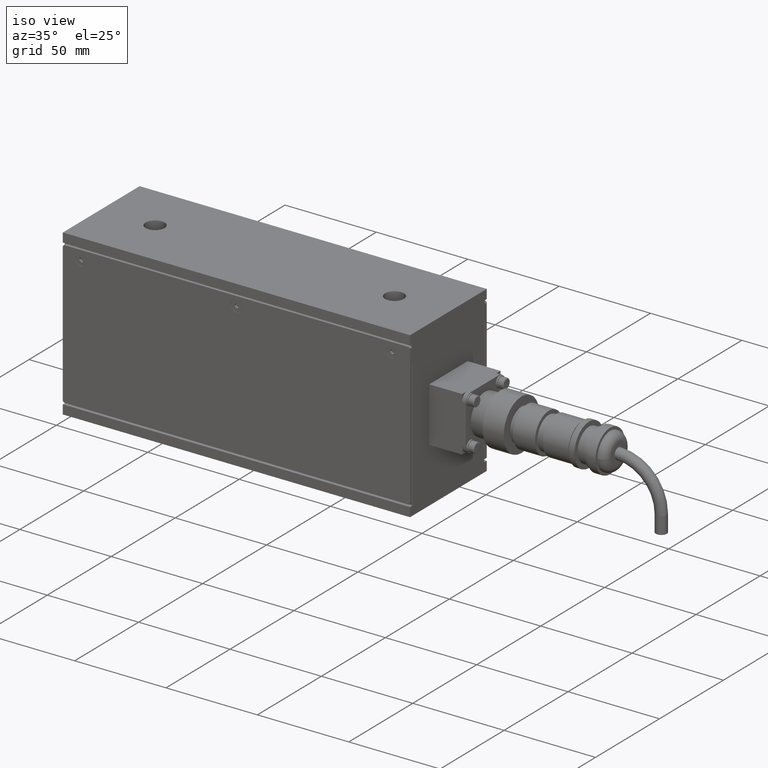
[diagram: clean part render]
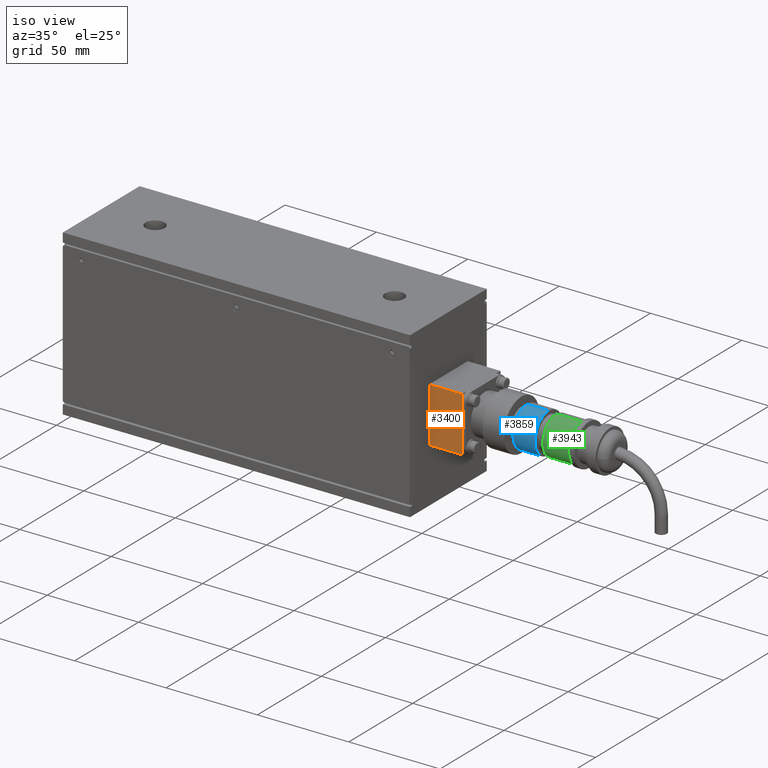
[diagram: same view with three faces highlighted in distinct colors, each labeled with its STEP entity id]
A machine part, iso view with three faces highlighted in distinct colors.
Their STEP definitions:

[orange] entity #3400 — the highlighted planar face has unit normal (0, -1, 0).
#3337=CARTESIAN_POINT('',(-15.0,-14.999999999999972,9.0));
#3338=VERTEX_POINT('',#3337);
#3345=CARTESIAN_POINT('',(-15.0,-14.999999999999972,-9.0));
#3346=VERTEX_POINT('',#3345);
#3347=CARTESIAN_POINT('',(-15.0,-14.999999999999972,-9.0));
#3348=DIRECTION('',(0.0,0.0,1.0));
#3349=VECTOR('',#3348,18.0);
#3350=LINE('',#3347,#3349);
#3351=EDGE_CURVE('',#3346,#3338,#3350,.T.);
#3370=CARTESIAN_POINT('',(-15.0,-14.999999999999972,-9.0));
#3371=DIRECTION('',(-1.0,0.0,0.0));
#3372=DIRECTION('',(0.0,0.0,1.0));
#3373=AXIS2_PLACEMENT_3D('',#3370,#3371,#3372);
#3374=PLANE('',#3373);
#3375=CARTESIAN_POINT('',(-15.0,15.0,9.0));
#3376=VERTEX_POINT('',#3375);
#3377=CARTESIAN_POINT('',(-15.0,-14.999999999999972,9.0));
#3378=DIRECTION('',(0.0,1.0,0.0));
#3379=VECTOR('',#3378,29.999999999999972);
#3380=LINE('',#3377,#3379);
#3381=EDGE_CURVE('',#3338,#3376,#3380,.T.);
#3382=ORIENTED_EDGE('',*,*,#3381,.T.);
#3383=CARTESIAN_POINT('',(-15.0,15.0,-9.0));
#3384=VERTEX_POINT('',#3383);
#3385=CARTESIAN_POINT('',(-15.0,15.0,-9.0));
#3386=DIRECTION('',(0.0,0.0,1.0));
#3387=VECTOR('',#3386,18.0);
#3388=LINE('',#3385,#3387);
#3389=EDGE_CURVE('',#3384,#3376,#3388,.T.);
#3390=ORIENTED_EDGE('',*,*,#3389,.F.);
#3391=CARTESIAN_POINT('',(-15.0,-14.999999999999972,-9.0));
#3392=DIRECTION('',(0.0,1.0,0.0));
#3393=VECTOR('',#3392,29.999999999999972);
#3394=LINE('',#3391,#3393);
#3395=EDGE_CURVE('',#3346,#3384,#3394,.T.);
#3396=ORIENTED_EDGE('',*,*,#3395,.F.);
#3397=ORIENTED_EDGE('',*,*,#3351,.T.);
#3398=EDGE_LOOP('',(#3382,#3390,#3396,#3397));
#3399=FACE_OUTER_BOUND('',#3398,.T.);
#3400=ADVANCED_FACE('',(#3399),#3374,.T.);

[blue] entity #3859 — the highlighted cylindrical surface (edge-blend (fillet) strip) has radius 11 mm, axis along (1, 0, 0).
#3818=CARTESIAN_POINT('',(-2.063341E-015,39.250000000000369,0.0));
#3819=DIRECTION('',(0.0,1.0,0.0));
#3820=DIRECTION('',(-1.0,0.0,0.0));
#3821=AXIS2_PLACEMENT_3D('',#3818,#3819,#3820);
#3822=CYLINDRICAL_SURFACE('',#3821,11.000000000000004);
#3823=CARTESIAN_POINT('',(-11.000000000000007,45.250000000000256,0.0));
#3824=VERTEX_POINT('',#3823);
#3825=CARTESIAN_POINT('',(-11.000000000000004,33.250000000000483,0.0));
#3826=VERTEX_POINT('',#3825);
#3827=CARTESIAN_POINT('',(-11.000000000000007,45.250000000000256,0.0));
#3828=DIRECTION('',(0.0,-1.0,0.0));
#3829=VECTOR('',#3828,11.999999999999773);
#3830=LINE('',#3827,#3829);
#3831=EDGE_CURVE('',#3824,#3826,#3830,.T.);
#3832=ORIENTED_EDGE('',*,*,#3831,.F.);
#3833=CARTESIAN_POINT('',(11.000000000000002,45.250000000000256,-1.347067E-015));
#3834=VERTEX_POINT('',#3833);
#3835=CARTESIAN_POINT('',(-2.063341E-015,45.250000000000256,0.0));
#3836=DIRECTION('',(0.0,1.0,0.0));
#3837=DIRECTION('',(-1.0,0.0,0.0));
#3838=AXIS2_PLACEMENT_3D('',#3835,#3836,#3837);
#3839=CIRCLE('',#3838,11.000000000000005);
#3840=EDGE_CURVE('',#3834,#3824,#3839,.T.);
#3841=ORIENTED_EDGE('',*,*,#3840,.F.);
#3842=CARTESIAN_POINT('',(11.000000000000002,33.250000000000483,-1.347067E-015));
#3843=VERTEX_POINT('',#3842);
#3844=CARTESIAN_POINT('',(11.000000000000002,45.250000000000256,-1.347067E-015));
#3845=DIRECTION('',(0.0,-1.0,0.0));
#3846=VECTOR('',#3845,11.999999999999773);
#3847=LINE('',#3844,#3846);
#3848=EDGE_CURVE('',#3834,#3843,#3847,.T.);
#3849=ORIENTED_EDGE('',*,*,#3848,.T.);
#3850=CARTESIAN_POINT('',(-2.063341E-015,33.250000000000483,0.0));
#3851=DIRECTION('',(0.0,1.0,0.0));
#3852=DIRECTION('',(-1.0,0.0,0.0));
#3853=AXIS2_PLACEMENT_3D('',#3850,#3851,#3852);
#3854=CIRCLE('',#3853,11.000000000000002);
#3855=EDGE_CURVE('',#3843,#3826,#3854,.T.);
#3856=ORIENTED_EDGE('',*,*,#3855,.T.);
#3857=EDGE_LOOP('',(#3832,#3841,#3849,#3856));
#3858=FACE_OUTER_BOUND('',#3857,.T.);
#3859=ADVANCED_FACE('',(#3858),#3822,.T.);

[green] entity #3943 — the highlighted cylindrical surface (edge-blend (fillet) strip) has radius 10.5 mm, axis along (1, 0, 0).
#3902=CARTESIAN_POINT('',(-2.063341E-015,56.250000000000227,0.0));
#3903=DIRECTION('',(0.0,1.0,0.0));
#3904=DIRECTION('',(-1.0,0.0,0.0));
#3905=AXIS2_PLACEMENT_3D('',#3902,#3903,#3904);
#3906=CYLINDRICAL_SURFACE('',#3905,10.499999999999540);
#3907=CARTESIAN_POINT('',(-10.499999999999535,63.250000000000227,0.0));
#3908=VERTEX_POINT('',#3907);
#3909=CARTESIAN_POINT('',(-10.499999999999549,49.250000000000227,0.0));
#3910=VERTEX_POINT('',#3909);
#3911=CARTESIAN_POINT('',(-10.499999999999535,63.250000000000227,0.0));
#3912=DIRECTION('',(0.0,-1.0,0.0));
#3913=VECTOR('',#3912,14.0);
#3914=LINE('',#3911,#3913);
#3915=EDGE_CURVE('',#3908,#3910,#3914,.T.);
#3916=ORIENTED_EDGE('',*,*,#3915,.F.);
#3917=CARTESIAN_POINT('',(10.499999999999538,63.250000000000227,-1.285837E-015));
#3918=VERTEX_POINT('',#3917);
#3919=CARTESIAN_POINT('',(-2.063341E-015,63.250000000000227,0.0));
#3920=DIRECTION('',(0.0,1.0,0.0));
#3921=DIRECTION('',(-1.0,0.0,0.0));
#3922=AXIS2_PLACEMENT_3D('',#3919,#3920,#3921);
#3923=CIRCLE('',#3922,10.499999999999533);
#3924=EDGE_CURVE('',#3918,#3908,#3923,.T.);
#3925=ORIENTED_EDGE('',*,*,#3924,.F.);
#3926=CARTESIAN_POINT('',(10.499999999999538,49.250000000000227,-1.285837E-015));
#3927=VERTEX_POINT('',#3926);
#3928=CARTESIAN_POINT('',(10.499999999999538,63.250000000000227,-1.285837E-015));
#3929=DIRECTION('',(0.0,-1.0,0.0));
#3930=VECTOR('',#3929,14.0);
#3931=LINE('',#3928,#3930);
#3932=EDGE_CURVE('',#3918,#3927,#3931,.T.);
#3933=ORIENTED_EDGE('',*,*,#3932,.T.);
#3934=CARTESIAN_POINT('',(-2.063341E-015,49.250000000000227,0.0));
#3935=DIRECTION('',(0.0,1.0,0.0));
#3936=DIRECTION('',(-1.0,0.0,0.0));
#3937=AXIS2_PLACEMENT_3D('',#3934,#3935,#3936);
#3938=CIRCLE('',#3937,10.499999999999547);
#3939=EDGE_CURVE('',#3927,#3910,#3938,.T.);
#3940=ORIENTED_EDGE('',*,*,#3939,.T.);
#3941=EDGE_LOOP('',(#3916,#3925,#3933,#3940));
#3942=FACE_OUTER_BOUND('',#3941,.T.);
#3943=ADVANCED_FACE('',(#3942),#3906,.T.);